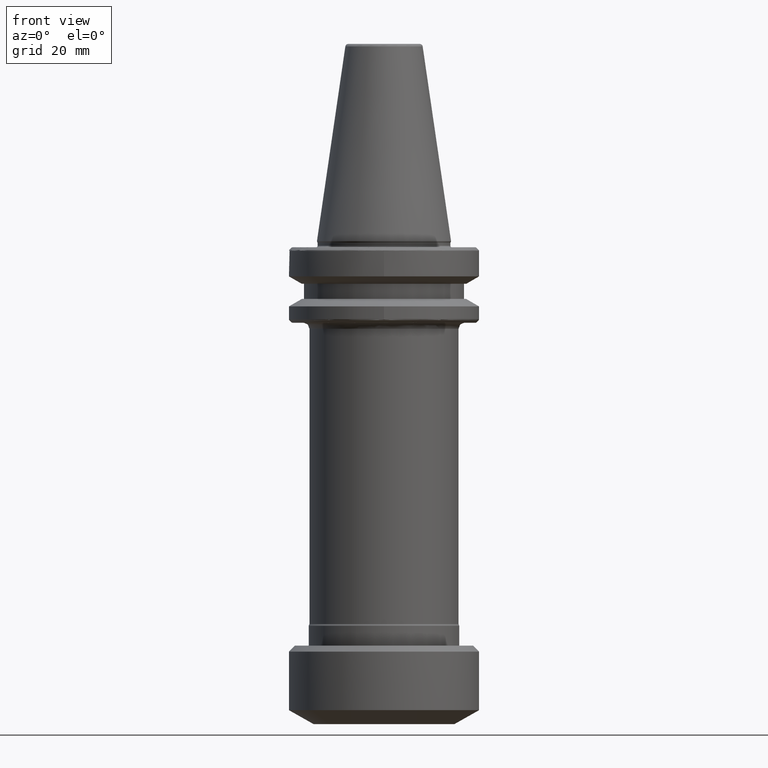
[diagram: clean part render]
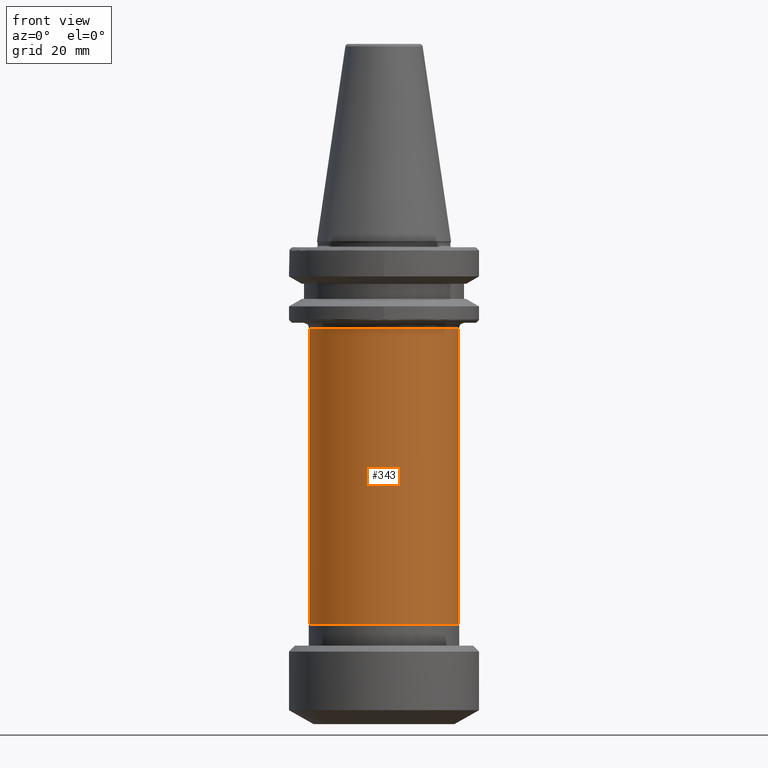
[diagram: same view with one face highlighted and labeled with its STEP entity id]
A machine part, front view. The second image highlights one B-rep face of the part: STEP entity #343.
In plain terms, the highlighted cylindrical surface (partial cylindrical patch) has radius 24.7 mm, axis along (0, 0, 1).
Its self-contained STEP definition (entity closure, byte-faithful):
#41 = FACE_OUTER_BOUND ( 'NONE', #1100, .T. ) ;
#164 = CARTESIAN_POINT ( 'NONE',  ( 0.0000000000000000000, 0.0000000000000000000, -126.8638732700000400 ) ) ;
#173 = CARTESIAN_POINT ( 'NONE',  ( 0.0000000000000000000, 0.0000000000000000000, -126.8638732700000100 ) ) ;
#269 = VERTEX_POINT ( 'NONE', #3377 ) ;
#319 = CARTESIAN_POINT ( 'NONE',  ( 24.69999999992037900, -2.217902622189706000E-009, -28.99999999972065400 ) ) ;
#343 = ADVANCED_FACE ( 'NONE', ( #41 ), #3419, .T. ) ;
#432 = DIRECTION ( 'NONE',  ( -1.000000000000000000, 0.0000000000000000000, 1.123707514802790000E-015 ) ) ;
#446 = EDGE_CURVE ( 'NONE', #269, #515, #1578, .T. ) ;
#515 = VERTEX_POINT ( 'NONE', #2712 ) ;
#532 = CARTESIAN_POINT ( 'NONE',  ( 24.69999999999999900, 0.0000000000000000000, -126.8638732700000400 ) ) ;
#599 = ORIENTED_EDGE ( 'NONE', *, *, #446, .F. ) ;
#713 = LINE ( 'NONE', #2939, #1005 ) ;
#972 = VERTEX_POINT ( 'NONE', #532 ) ;
#1005 = VECTOR ( 'NONE', #2442, 1000.000000000000000 ) ;
#1036 = CARTESIAN_POINT ( 'NONE',  ( 0.0000000000000000000, 0.0000000000000000000, -28.99999999999999600 ) ) ;
#1100 = EDGE_LOOP ( 'NONE', ( #599, #1630, #2691, #2542 ) ) ;
#1304 = DIRECTION ( 'NONE',  ( 1.000000000000000000, 0.0000000000000000000, -1.404634393503487500E-016 ) ) ;
#1452 = CIRCLE ( 'NONE', #1949, 24.69999999999999900 ) ;
#1578 = LINE ( 'NONE', #2073, #2204 ) ;
#1630 = ORIENTED_EDGE ( 'NONE', *, *, #2935, .T. ) ;
#1949 = AXIS2_PLACEMENT_3D ( 'NONE', #1036, #2899, #1304 ) ;
#2028 = DIRECTION ( 'NONE',  ( -0.0000000000000000000, -0.0000000000000000000, 1.000000000000000000 ) ) ;
#2073 = CARTESIAN_POINT ( 'NONE',  ( -24.69999999999999900, 3.024877593893962600E-015, -126.8638732700000100 ) ) ;
#2150 = DIRECTION ( 'NONE',  ( 0.0000000000000000000, 0.0000000000000000000, 1.000000000000000000 ) ) ;
#2204 = VECTOR ( 'NONE', #2569, 1000.000000000000000 ) ;
#2362 = EDGE_CURVE ( 'NONE', #515, #2546, #1452, .T. ) ;
#2410 = DIRECTION ( 'NONE',  ( 1.000000000000000000, 0.0000000000000000000, 0.0000000000000000000 ) ) ;
#2442 = DIRECTION ( 'NONE',  ( 0.0000000000000000000, 0.0000000000000000000, 1.000000000000000000 ) ) ;
#2481 = EDGE_CURVE ( 'NONE', #972, #2546, #713, .T. ) ;
#2542 = ORIENTED_EDGE ( 'NONE', *, *, #2362, .F. ) ;
#2546 = VERTEX_POINT ( 'NONE', #319 ) ;
#2569 = DIRECTION ( 'NONE',  ( 0.0000000000000000000, 0.0000000000000000000, 1.000000000000000000 ) ) ;
#2691 = ORIENTED_EDGE ( 'NONE', *, *, #2481, .T. ) ;
#2712 = CARTESIAN_POINT ( 'NONE',  ( -24.69999999992037900, -7.599082026493020500E-009, -28.99999999972065400 ) ) ;
#2899 = DIRECTION ( 'NONE',  ( 0.0000000000000000000, 0.0000000000000000000, 1.000000000000000000 ) ) ;
#2935 = EDGE_CURVE ( 'NONE', #269, #972, #2968, .T. ) ;
#2939 = CARTESIAN_POINT ( 'NONE',  ( 24.69999999999999900, 0.0000000000000000000, -126.8638732700000100 ) ) ;
#2968 = CIRCLE ( 'NONE', #3125, 24.69999999999999900 ) ;
#3125 = AXIS2_PLACEMENT_3D ( 'NONE', #164, #2028, #432 ) ;
#3174 = AXIS2_PLACEMENT_3D ( 'NONE', #173, #2150, #2410 ) ;
#3377 = CARTESIAN_POINT ( 'NONE',  ( -24.69999999999999900, 3.024877593893962600E-015, -126.8638732700000400 ) ) ;
#3419 = CYLINDRICAL_SURFACE ( 'NONE', #3174, 24.69999999999999900 ) ;